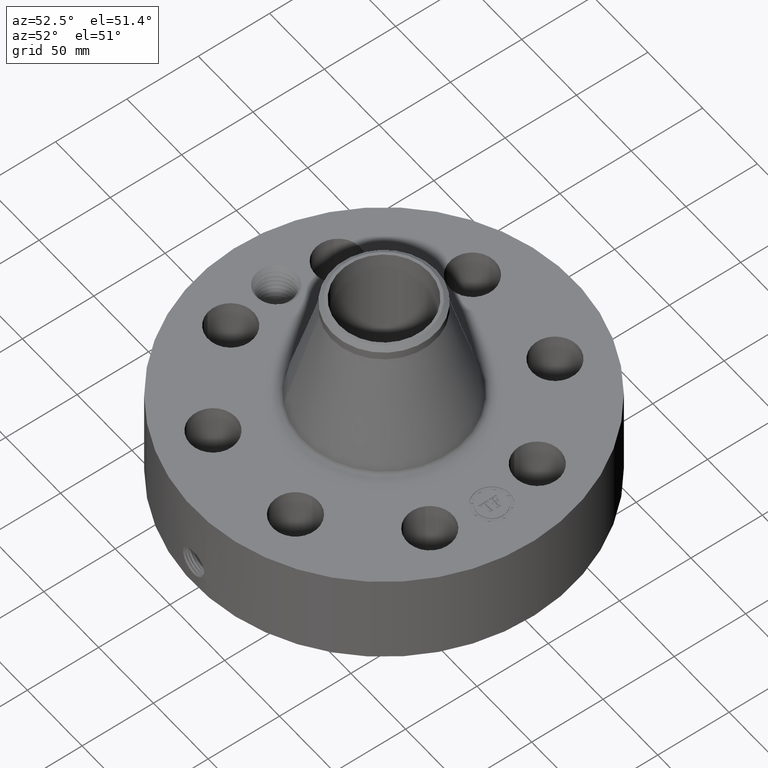
[diagram: clean part render]
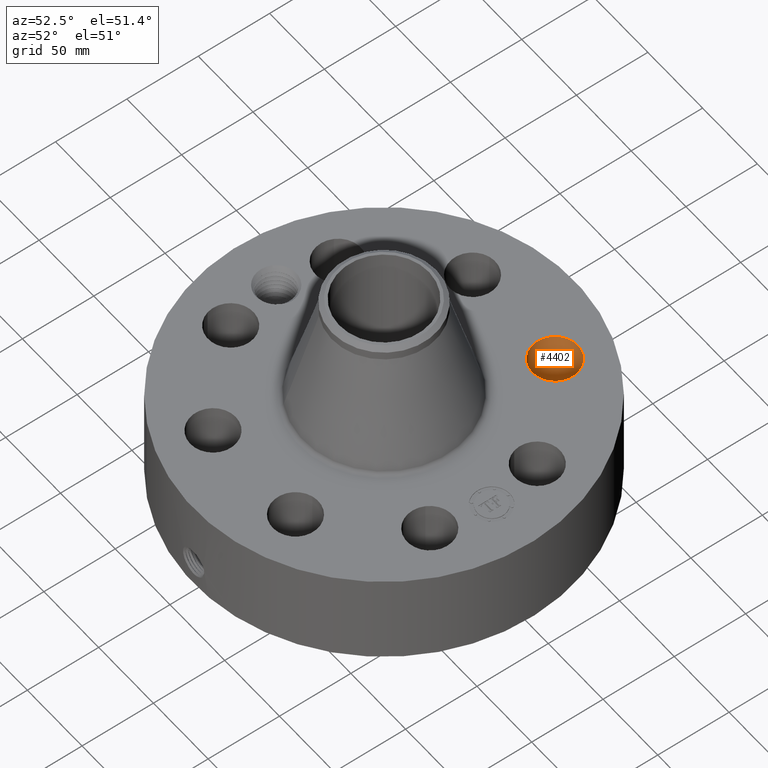
[diagram: same view with one face highlighted and labeled with its STEP entity id]
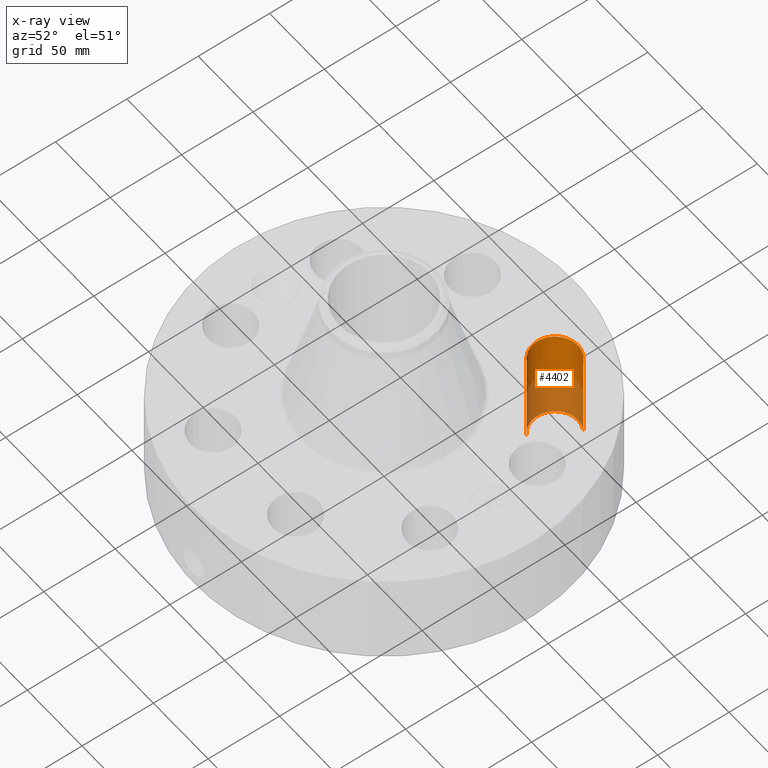
[diagram: x-ray of the same camera — body ghosted, the highlighted face saturated]
A machine part, auxiliary view. The second image highlights one B-rep face of the part: STEP entity #4402.
The next image is the same camera in x-ray: the body ghosted, the highlighted face saturated — about 47% of this face is hidden behind the body in this view.
In plain terms, the highlighted cylindrical surface (edge-blend (fillet) strip) has radius 15.875 mm, axis along (0, 0, -1).
Its self-contained STEP definition (entity closure, byte-faithful):
#3111=AXIS2_PLACEMENT_3D('Circle Axis2P3D',#3109,#3110,$) ;
#4375=AXIS2_PLACEMENT_3D('Cylinder Axis2P3D',#4372,#4373,#4374) ;
#4386=AXIS2_PLACEMENT_3D('Circle Axis2P3D',#4384,#4385,$) ;
#3104=CARTESIAN_POINT('Vertex',(1.78253926205,4.12852228968,2.62500000001)) ;
#3106=CARTESIAN_POINT('Vertex',(1.18325733879,3.03154408731,2.62500000001)) ;
#3109=CARTESIAN_POINT('Axis2P3D Location',(1.48289830042,3.5800331885,2.62500000001)) ;
#4372=CARTESIAN_POINT('Axis2P3D Location',(1.48289830042,3.5800331885,2.62106299214)) ;
#4377=CARTESIAN_POINT('Line Origine',(1.18325733879,3.03154408731,1.31250000001)) ;
#4381=CARTESIAN_POINT('Vertex',(1.18325733879,3.03154408731,0.)) ;
#4384=CARTESIAN_POINT('Axis2P3D Location',(1.48289830042,3.5800331885,0.)) ;
#4388=CARTESIAN_POINT('Vertex',(1.78253926205,4.12852228968,0.)) ;
#4391=CARTESIAN_POINT('Line Origine',(1.78253926205,4.12852228968,1.31250000001)) ;
#3110=DIRECTION('Axis2P3D Direction',(0.,0.,-0.0393700787402)) ;
#4373=DIRECTION('Axis2P3D Direction',(0.,0.,-0.0393700787402)) ;
#4374=DIRECTION('Axis2P3D XDirection',(0.0188750212049,0.0345504945626,0.)) ;
#4378=DIRECTION('Vector Direction',(0.,0.,-0.0393700787402)) ;
#4385=DIRECTION('Axis2P3D Direction',(0.,0.,-0.0393700787402)) ;
#4392=DIRECTION('Vector Direction',(0.,0.,-0.0393700787402)) ;
#4379=VECTOR('Line Direction',#4378,0.0393700787402) ;
#4393=VECTOR('Line Direction',#4392,0.0393700787402) ;
#4397=ORIENTED_EDGE('',*,*,#4383,.F.) ;
#4398=ORIENTED_EDGE('',*,*,#4390,.T.) ;
#4399=ORIENTED_EDGE('',*,*,#4395,.T.) ;
#4400=ORIENTED_EDGE('',*,*,#3113,.F.) ;
#4402=ADVANCED_FACE('PartBody',(#4401),#4376,.F.) ;
#3112=CIRCLE('generated circle',#3111,0.625000000002) ;
#4387=CIRCLE('generated circle',#4386,0.625000000002) ;
#4376=CYLINDRICAL_SURFACE('generated cylinder',#4375,0.625000000002) ;
#3113=EDGE_CURVE('',#3107,#3105,#3112,.T.) ;
#4383=EDGE_CURVE('',#4382,#3107,#4380,.F.) ;
#4390=EDGE_CURVE('',#4382,#4389,#4387,.T.) ;
#4395=EDGE_CURVE('',#4389,#3105,#4394,.F.) ;
#4396=EDGE_LOOP('',(#4397,#4398,#4399,#4400)) ;
#4401=FACE_OUTER_BOUND('',#4396,.T.) ;
#4380=LINE('Line',#4377,#4379) ;
#4394=LINE('Line',#4391,#4393) ;
#3105=VERTEX_POINT('',#3104) ;
#3107=VERTEX_POINT('',#3106) ;
#4382=VERTEX_POINT('',#4381) ;
#4389=VERTEX_POINT('',#4388) ;